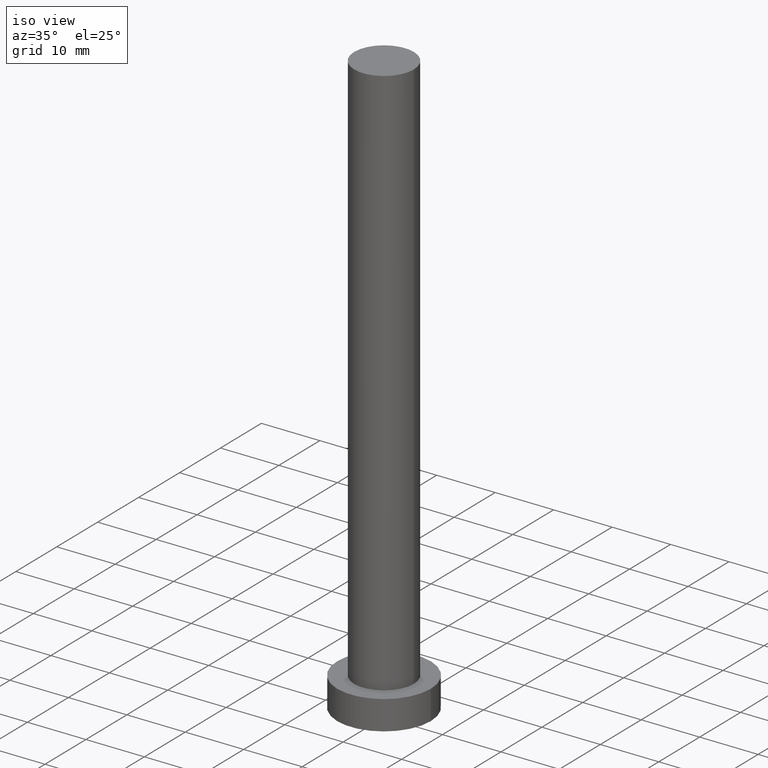
[diagram: clean part render]
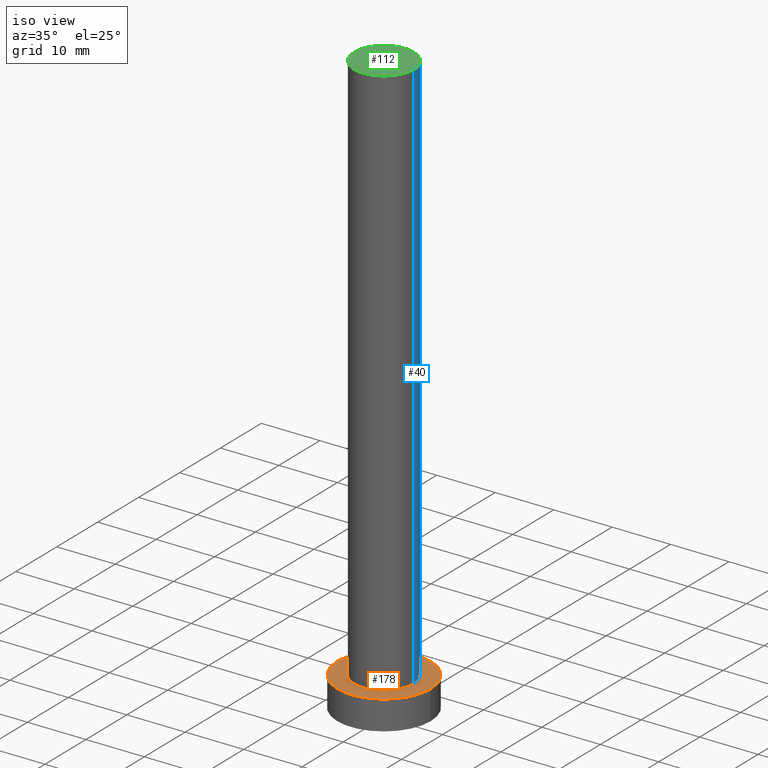
[diagram: same view with three faces highlighted in distinct colors, each labeled with its STEP entity id]
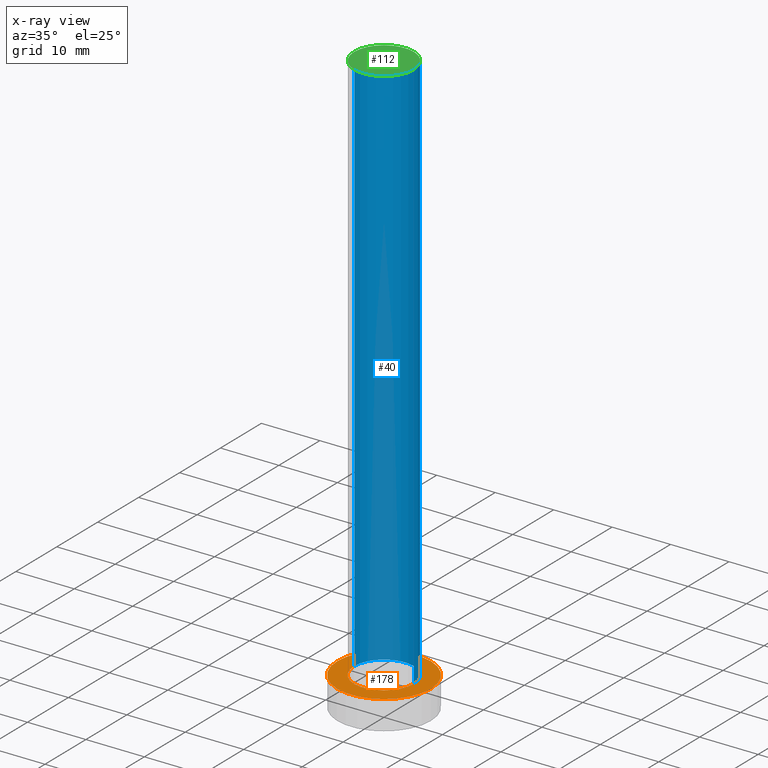
[diagram: x-ray of the same camera — body ghosted, the three highlighted faces saturated]
A machine part, iso view with three faces highlighted in distinct colors.
The next image is the same camera in x-ray (body ghosted, the three faces saturated) — at least one of them is partly hidden behind the body in this view.
Their STEP definitions:

[orange] entity #178 — the highlighted planar face has unit normal (0, 0, 1).
#2 = DIRECTION ( 'NONE',  ( 0.000000000000000000, 0.000000000000000000, 1.000000000000000000 ) ) ;
#3 = VERTEX_POINT ( 'NONE', #41 ) ;
#8 = ORIENTED_EDGE ( 'NONE', *, *, #139, .F. ) ;
#22 = DIRECTION ( 'NONE',  ( 0.000000000000000000, 0.000000000000000000, 1.000000000000000000 ) ) ;
#27 = CIRCLE ( 'NONE', #97, 8.000000000000000000 ) ;
#30 = VERTEX_POINT ( 'NONE', #45 ) ;
#36 = FACE_OUTER_BOUND ( 'NONE', #193, .T. ) ;
#39 = DIRECTION ( 'NONE',  ( 1.000000000000000000, 0.000000000000000000, -0.000000000000000000 ) ) ;
#41 = CARTESIAN_POINT ( 'NONE',  ( -5.099999999999999645, 0.000000000000000000, 5.000000000000000000 ) ) ;
#44 = VERTEX_POINT ( 'NONE', #100 ) ;
#45 = CARTESIAN_POINT ( 'NONE',  ( 5.099999999999999645, 6.245698675651500839E-16, 5.000000000000000000 ) ) ;
#65 = DIRECTION ( 'NONE',  ( 1.000000000000000000, 0.000000000000000000, 0.000000000000000000 ) ) ;
#66 = DIRECTION ( 'NONE',  ( 1.000000000000000000, 0.000000000000000000, 0.000000000000000000 ) ) ;
#84 = DIRECTION ( 'NONE',  ( 0.000000000000000000, 0.000000000000000000, 1.000000000000000000 ) ) ;
#87 = CARTESIAN_POINT ( 'NONE',  ( 0.000000000000000000, 0.000000000000000000, 5.000000000000000000 ) ) ;
#97 = AXIS2_PLACEMENT_3D ( 'NONE', #185, #175, #65 ) ;
#100 = CARTESIAN_POINT ( 'NONE',  ( 8.000000000000000000, 9.797174393178825657E-16, 5.000000000000000000 ) ) ;
#101 = CIRCLE ( 'NONE', #126, 8.000000000000000000 ) ;
#108 = EDGE_LOOP ( 'NONE', ( #223, #8 ) ) ;
#115 = AXIS2_PLACEMENT_3D ( 'NONE', #158, #84, #66 ) ;
#124 = VERTEX_POINT ( 'NONE', #211 ) ;
#126 = AXIS2_PLACEMENT_3D ( 'NONE', #154, #22, #149 ) ;
#134 = AXIS2_PLACEMENT_3D ( 'NONE', #215, #2, #39 ) ;
#135 = PLANE ( 'NONE',  #134 ) ;
#139 = EDGE_CURVE ( 'NONE', #30, #3, #210, .T. ) ;
#145 = ORIENTED_EDGE ( 'NONE', *, *, #245, .T. ) ;
#149 = DIRECTION ( 'NONE',  ( 1.000000000000000000, 0.000000000000000000, 0.000000000000000000 ) ) ;
#154 = CARTESIAN_POINT ( 'NONE',  ( 0.000000000000000000, 0.000000000000000000, 5.000000000000000000 ) ) ;
#156 = DIRECTION ( 'NONE',  ( 1.000000000000000000, 0.000000000000000000, 0.000000000000000000 ) ) ;
#158 = CARTESIAN_POINT ( 'NONE',  ( 0.000000000000000000, 0.000000000000000000, 5.000000000000000000 ) ) ;
#161 = ORIENTED_EDGE ( 'NONE', *, *, #183, .T. ) ;
#175 = DIRECTION ( 'NONE',  ( 0.000000000000000000, 0.000000000000000000, 1.000000000000000000 ) ) ;
#178 = ADVANCED_FACE ( 'NONE', ( #191, #36 ), #135, .T. ) ;
#183 = EDGE_CURVE ( 'NONE', #44, #124, #27, .T. ) ;
#185 = CARTESIAN_POINT ( 'NONE',  ( 0.000000000000000000, 0.000000000000000000, 5.000000000000000000 ) ) ;
#191 = FACE_BOUND ( 'NONE', #108, .T. ) ;
#193 = EDGE_LOOP ( 'NONE', ( #145, #161 ) ) ;
#210 = CIRCLE ( 'NONE', #115, 5.099999999999999645 ) ;
#211 = CARTESIAN_POINT ( 'NONE',  ( -8.000000000000000000, 0.000000000000000000, 5.000000000000000000 ) ) ;
#215 = CARTESIAN_POINT ( 'NONE',  ( 0.000000000000000000, 0.000000000000000000, 5.000000000000000000 ) ) ;
#220 = CIRCLE ( 'NONE', #238, 5.099999999999999645 ) ;
#223 = ORIENTED_EDGE ( 'NONE', *, *, #252, .F. ) ;
#233 = DIRECTION ( 'NONE',  ( 0.000000000000000000, 0.000000000000000000, 1.000000000000000000 ) ) ;
#238 = AXIS2_PLACEMENT_3D ( 'NONE', #87, #233, #156 ) ;
#245 = EDGE_CURVE ( 'NONE', #124, #44, #101, .T. ) ;
#252 = EDGE_CURVE ( 'NONE', #3, #30, #220, .T. ) ;

[blue] entity #40 — the highlighted cylindrical surface (edge-blend (fillet) strip) has radius 5.1 mm, axis along (-0, -0, -1).
#3 = VERTEX_POINT ( 'NONE', #41 ) ;
#4 = VECTOR ( 'NONE', #136, 1000.000000000000000 ) ;
#6 = VERTEX_POINT ( 'NONE', #222 ) ;
#11 = DIRECTION ( 'NONE',  ( -1.000000000000000000, 0.000000000000000000, 0.000000000000000000 ) ) ;
#24 = CIRCLE ( 'NONE', #188, 5.099999999999999645 ) ;
#30 = VERTEX_POINT ( 'NONE', #45 ) ;
#40 = ADVANCED_FACE ( 'NONE', ( #109 ), #194, .T. ) ;
#41 = CARTESIAN_POINT ( 'NONE',  ( -5.099999999999999645, 0.000000000000000000, 5.000000000000000000 ) ) ;
#42 = AXIS2_PLACEMENT_3D ( 'NONE', #76, #203, #11 ) ;
#45 = CARTESIAN_POINT ( 'NONE',  ( 5.099999999999999645, 6.245698675651500839E-16, 5.000000000000000000 ) ) ;
#50 = CARTESIAN_POINT ( 'NONE',  ( 0.000000000000000000, 0.000000000000000000, 100.0000000000000000 ) ) ;
#51 = DIRECTION ( 'NONE',  ( 0.000000000000000000, 0.000000000000000000, 1.000000000000000000 ) ) ;
#64 = LINE ( 'NONE', #187, #4 ) ;
#66 = DIRECTION ( 'NONE',  ( 1.000000000000000000, 0.000000000000000000, 0.000000000000000000 ) ) ;
#76 = CARTESIAN_POINT ( 'NONE',  ( 0.000000000000000000, 0.000000000000000000, 100.0000000000000000 ) ) ;
#84 = DIRECTION ( 'NONE',  ( 0.000000000000000000, 0.000000000000000000, 1.000000000000000000 ) ) ;
#104 = CARTESIAN_POINT ( 'NONE',  ( 5.099999999999999645, 6.245698675651500839E-16, 100.0000000000000000 ) ) ;
#106 = EDGE_CURVE ( 'NONE', #197, #6, #24, .T. ) ;
#107 = VECTOR ( 'NONE', #214, 1000.000000000000000 ) ;
#109 = FACE_OUTER_BOUND ( 'NONE', #180, .T. ) ;
#115 = AXIS2_PLACEMENT_3D ( 'NONE', #158, #84, #66 ) ;
#136 = DIRECTION ( 'NONE',  ( -0.000000000000000000, -0.000000000000000000, -1.000000000000000000 ) ) ;
#139 = EDGE_CURVE ( 'NONE', #30, #3, #210, .T. ) ;
#140 = EDGE_CURVE ( 'NONE', #197, #30, #190, .T. ) ;
#150 = CARTESIAN_POINT ( 'NONE',  ( 5.099999999999999645, 6.245698675651500839E-16, 100.0000000000000000 ) ) ;
#155 = EDGE_CURVE ( 'NONE', #6, #3, #64, .T. ) ;
#158 = CARTESIAN_POINT ( 'NONE',  ( 0.000000000000000000, 0.000000000000000000, 5.000000000000000000 ) ) ;
#177 = ORIENTED_EDGE ( 'NONE', *, *, #140, .T. ) ;
#179 = ORIENTED_EDGE ( 'NONE', *, *, #106, .F. ) ;
#180 = EDGE_LOOP ( 'NONE', ( #179, #177, #242, #212 ) ) ;
#187 = CARTESIAN_POINT ( 'NONE',  ( -5.099999999999999645, 0.000000000000000000, 100.0000000000000000 ) ) ;
#188 = AXIS2_PLACEMENT_3D ( 'NONE', #50, #51, #207 ) ;
#190 = LINE ( 'NONE', #150, #107 ) ;
#194 = CYLINDRICAL_SURFACE ( 'NONE', #42, 5.099999999999999645 ) ;
#197 = VERTEX_POINT ( 'NONE', #104 ) ;
#203 = DIRECTION ( 'NONE',  ( -0.000000000000000000, -0.000000000000000000, -1.000000000000000000 ) ) ;
#207 = DIRECTION ( 'NONE',  ( 1.000000000000000000, 0.000000000000000000, 0.000000000000000000 ) ) ;
#210 = CIRCLE ( 'NONE', #115, 5.099999999999999645 ) ;
#212 = ORIENTED_EDGE ( 'NONE', *, *, #155, .F. ) ;
#214 = DIRECTION ( 'NONE',  ( -0.000000000000000000, -0.000000000000000000, -1.000000000000000000 ) ) ;
#222 = CARTESIAN_POINT ( 'NONE',  ( -5.099999999999999645, 0.000000000000000000, 100.0000000000000000 ) ) ;
#242 = ORIENTED_EDGE ( 'NONE', *, *, #139, .T. ) ;

[green] entity #112 — the highlighted planar face has unit normal (0, 0, 1).
#5 = ORIENTED_EDGE ( 'NONE', *, *, #106, .T. ) ;
#6 = VERTEX_POINT ( 'NONE', #222 ) ;
#18 = AXIS2_PLACEMENT_3D ( 'NONE', #133, #57, #88 ) ;
#24 = CIRCLE ( 'NONE', #188, 5.099999999999999645 ) ;
#50 = CARTESIAN_POINT ( 'NONE',  ( 0.000000000000000000, 0.000000000000000000, 100.0000000000000000 ) ) ;
#51 = DIRECTION ( 'NONE',  ( 0.000000000000000000, 0.000000000000000000, 1.000000000000000000 ) ) ;
#57 = DIRECTION ( 'NONE',  ( 0.000000000000000000, 0.000000000000000000, 1.000000000000000000 ) ) ;
#74 = AXIS2_PLACEMENT_3D ( 'NONE', #228, #235, #86 ) ;
#77 = FACE_OUTER_BOUND ( 'NONE', #94, .T. ) ;
#86 = DIRECTION ( 'NONE',  ( 1.000000000000000000, 0.000000000000000000, -0.000000000000000000 ) ) ;
#88 = DIRECTION ( 'NONE',  ( 1.000000000000000000, 0.000000000000000000, 0.000000000000000000 ) ) ;
#94 = EDGE_LOOP ( 'NONE', ( #251, #5 ) ) ;
#104 = CARTESIAN_POINT ( 'NONE',  ( 5.099999999999999645, 6.245698675651500839E-16, 100.0000000000000000 ) ) ;
#106 = EDGE_CURVE ( 'NONE', #197, #6, #24, .T. ) ;
#112 = ADVANCED_FACE ( 'NONE', ( #77 ), #144, .T. ) ;
#133 = CARTESIAN_POINT ( 'NONE',  ( 0.000000000000000000, 0.000000000000000000, 100.0000000000000000 ) ) ;
#144 = PLANE ( 'NONE',  #74 ) ;
#188 = AXIS2_PLACEMENT_3D ( 'NONE', #50, #51, #207 ) ;
#197 = VERTEX_POINT ( 'NONE', #104 ) ;
#207 = DIRECTION ( 'NONE',  ( 1.000000000000000000, 0.000000000000000000, 0.000000000000000000 ) ) ;
#216 = CIRCLE ( 'NONE', #18, 5.099999999999999645 ) ;
#222 = CARTESIAN_POINT ( 'NONE',  ( -5.099999999999999645, 0.000000000000000000, 100.0000000000000000 ) ) ;
#228 = CARTESIAN_POINT ( 'NONE',  ( 0.000000000000000000, 0.000000000000000000, 100.0000000000000000 ) ) ;
#229 = EDGE_CURVE ( 'NONE', #6, #197, #216, .T. ) ;
#235 = DIRECTION ( 'NONE',  ( 0.000000000000000000, 0.000000000000000000, 1.000000000000000000 ) ) ;
#251 = ORIENTED_EDGE ( 'NONE', *, *, #229, .T. ) ;